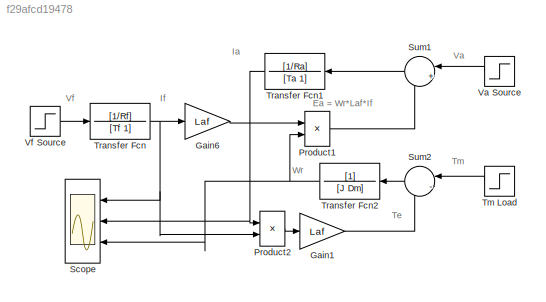
MODEL slx_f29afcd19478
KIND model
CONFIG AbsTol = auto
CONFIG EnableMultiTasking = on
CONFIG FixedStep = auto
CONFIG MaxStep = auto
CONFIG MinStep = auto
CONFIG RelTol = 1e-3
CONFIG SampleTimeConstraint = Unconstrained
CONFIG Solver = ode45
CONFIG SolverName = ode45
CONFIG StartTime = 0.0
CONFIG StopTime = 6
BLOCK [Gain] Gain1
  Gain = Laf
BLOCK [Gain] Gain6
  Gain = Laf
BLOCK [Product] Product1
  InputSameDT = off
  Ports = [2, 1]
  RndMeth = Floor
BLOCK [Product] Product2
  InputSameDT = off
  Ports = [2, 1]
  RndMeth = Floor
BLOCK [Scope] Scope
  NumInputPorts = 3
  Ports = [3]
  ScopeSpecificationString = Simulink.scopes.TimeScopeBlockCfg('CurrentConfiguration', extmgr.ConfigurationSet(extmgr.Configuration('Core','General UI',true),extmgr.Configuration('Core','Source UI',true),extmgr.Configuration('Sources','WiredSimulink',true,'DataLoggingSaveFormat','StructureWithTime','DataLoggingDecimation','1','DataLoggingDecimateData',true),extmgr.Configuration('Visuals','Time Domain',true,'SerializedDisplays...<+3074ch>
BLOCK [Sum] Sum1
  IconShape = round
  InputSameDT = off
  Inputs = |+-
  OutDataTypeStr = Inherit: Inherit via internal rule
  Ports = [2, 1]
BLOCK [Sum] Sum2
  IconShape = round
  InputSameDT = off
  Inputs = |-+
  OutDataTypeStr = Inherit: Inherit via internal rule
  Ports = [2, 1]
BLOCK [Step] Tm Load
  After = Tm
  SampleTime = 0
  Time = 4
BLOCK [TransferFcn] Transfer Fcn
  Denominator = [Tf 1]
  Numerator = [1/Rf]
BLOCK [TransferFcn] Transfer Fcn1
  Denominator = [Ta 1]
  Numerator = [1/Ra]
BLOCK [TransferFcn] Transfer Fcn2
  Denominator = [J Dm]
BLOCK [Step] Va Source
  After = Va
  SampleTime = 0
  Time = 2
BLOCK [Step] Vf Source
  After = Va
  Before = Va
  SampleTime = 0
  Time = 0
ANNOTATION (root): Ea = Wr*Laf*If
ANNOTATION (root): Ia
ANNOTATION (root): If
ANNOTATION (root): Te
ANNOTATION (root): Tm
ANNOTATION (root): Va
ANNOTATION (root): Vf
ANNOTATION (root): Wr
LINE Gain1:1 -> Sum2:2
LINE Gain6:1 -> Product1:1
LINE Product1:1 -> Sum1:2
LINE Product2:1 -> Gain1:1
LINE Sum1:1 -> Transfer Fcn1:1
LINE Sum2:1 -> Transfer Fcn2:1
LINE Tm Load:1 -> Sum2:1
NET Transfer Fcn1:1 -> Product2:1, Scope:2
NET Transfer Fcn2:1 -> Product1:2, Scope:3
NET Transfer Fcn:1 -> Gain6:1, Product2:2, Scope:1
LINE Va Source:1 -> Sum1:1
LINE Vf Source:1 -> Transfer Fcn:1
note: NET lines group one-source signal fan-out (src -> all destinations, sorted); 1:1 wires keep LINE
